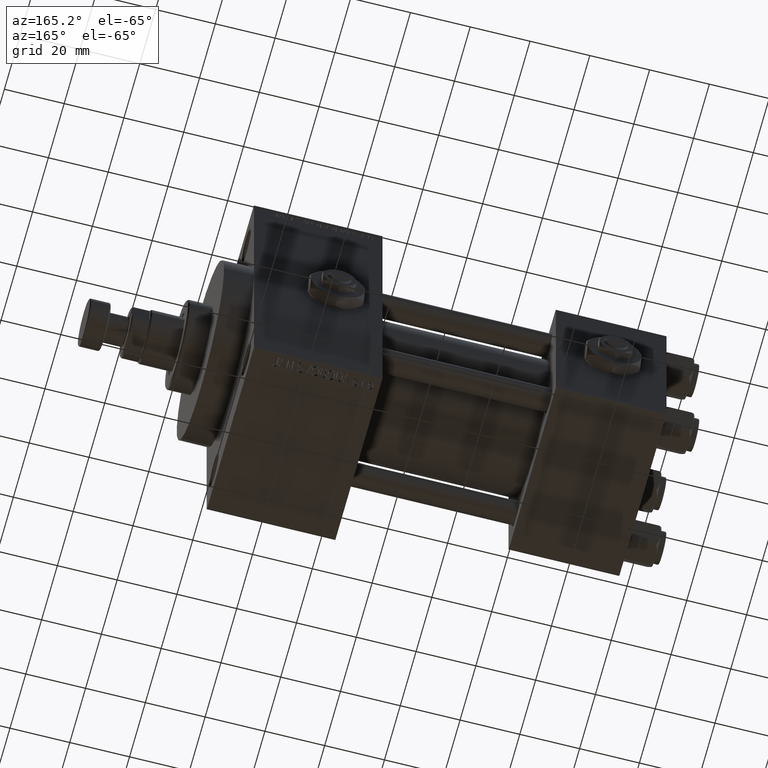
[diagram: clean part render]
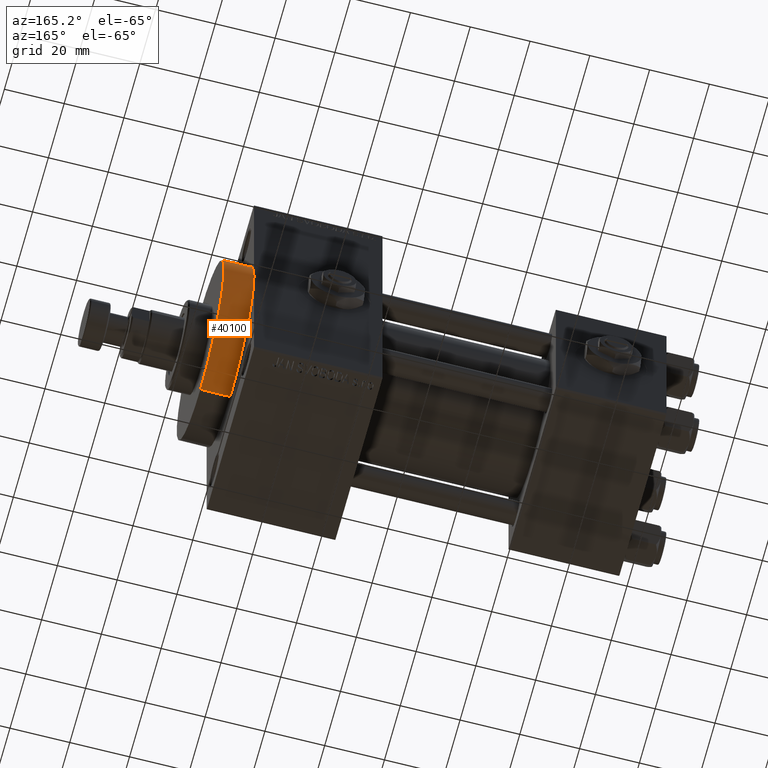
[diagram: same view with one face highlighted and labeled with its STEP entity id]
A machine part, auxiliary view. The second image highlights one B-rep face of the part: STEP entity #40100.
In plain terms, the highlighted cylindrical surface (partial cylindrical patch) has radius 30 mm, axis along (-1, -0, -0).
Its self-contained STEP definition (entity closure, byte-faithful):
#2927 = EDGE_CURVE ( 'NONE', #35675, #49178, #20466, .T. ) ;
#3139 = DIRECTION ( 'NONE',  ( 1.000000000000000000, 0.000000000000000000, 0.000000000000000000 ) ) ;
#3912 = DIRECTION ( 'NONE',  ( 1.000000000000000000, 0.000000000000000000, 0.000000000000000000 ) ) ;
#3929 = DIRECTION ( 'NONE',  ( 0.000000000000000000, 0.000000000000000000, 1.000000000000000000 ) ) ;
#6558 = CIRCLE ( 'NONE', #34665, 30.00000000000000000 ) ;
#6576 = EDGE_CURVE ( 'NONE', #49178, #32250, #46562, .T. ) ;
#6789 = CARTESIAN_POINT ( 'NONE',  ( 138.0000000000000000, 30.00000000000000000, 0.000000000000000000 ) ) ;
#7657 = ORIENTED_EDGE ( 'NONE', *, *, #2927, .T. ) ;
#9033 = AXIS2_PLACEMENT_3D ( 'NONE', #23057, #22568, #3929 ) ;
#9481 = CARTESIAN_POINT ( 'NONE',  ( 148.0000000000000284, 0.000000000000000000, 30.00000000000000000 ) ) ;
#10551 = CIRCLE ( 'NONE', #35443, 30.00000000000000000 ) ;
#10729 = DIRECTION ( 'NONE',  ( 0.000000000000000000, 0.000000000000000000, -1.000000000000000000 ) ) ;
#11508 = EDGE_LOOP ( 'NONE', ( #49161, #7657, #47018, #37475, #22599 ) ) ;
#12058 = VERTEX_POINT ( 'NONE', #40585 ) ;
#12232 = DIRECTION ( 'NONE',  ( 0.000000000000000000, 0.000000000000000000, -1.000000000000000000 ) ) ;
#12930 = DIRECTION ( 'NONE',  ( -1.000000000000000000, -0.000000000000000000, -0.000000000000000000 ) ) ;
#14299 = EDGE_CURVE ( 'NONE', #27494, #12058, #14694, .T. ) ;
#14531 = CARTESIAN_POINT ( 'NONE',  ( 138.0000000000000000, 0.000000000000000000, 0.000000000000000000 ) ) ;
#14694 = LINE ( 'NONE', #49381, #32621 ) ;
#15267 = FACE_OUTER_BOUND ( 'NONE', #11508, .T. ) ;
#17544 = VECTOR ( 'NONE', #12930, 1000.000000000000000 ) ;
#20466 = LINE ( 'NONE', #35819, #17544 ) ;
#22568 = DIRECTION ( 'NONE',  ( -1.000000000000000000, -0.000000000000000000, -0.000000000000000000 ) ) ;
#22599 = ORIENTED_EDGE ( 'NONE', *, *, #14299, .F. ) ;
#23057 = CARTESIAN_POINT ( 'NONE',  ( 148.0000000000000284, 0.000000000000000000, 0.000000000000000000 ) ) ;
#26260 = CARTESIAN_POINT ( 'NONE',  ( 138.0000000000000000, 3.673940397442059178E-15, -30.00000000000000000 ) ) ;
#26273 = CARTESIAN_POINT ( 'NONE',  ( 148.0000000000000284, 0.000000000000000000, 0.000000000000000000 ) ) ;
#26478 = AXIS2_PLACEMENT_3D ( 'NONE', #41155, #29088, #10729 ) ;
#26512 = DIRECTION ( 'NONE',  ( 0.000000000000000000, 0.000000000000000000, -1.000000000000000000 ) ) ;
#27494 = VERTEX_POINT ( 'NONE', #9481 ) ;
#29088 = DIRECTION ( 'NONE',  ( 1.000000000000000000, 0.000000000000000000, 0.000000000000000000 ) ) ;
#29286 = EDGE_CURVE ( 'NONE', #32250, #12058, #10551, .T. ) ;
#29855 = CYLINDRICAL_SURFACE ( 'NONE', #9033, 30.00000000000000000 ) ;
#30007 = DIRECTION ( 'NONE',  ( -1.000000000000000000, -0.000000000000000000, -0.000000000000000000 ) ) ;
#30333 = EDGE_CURVE ( 'NONE', #35675, #27494, #6558, .T. ) ;
#32250 = VERTEX_POINT ( 'NONE', #6789 ) ;
#32621 = VECTOR ( 'NONE', #30007, 1000.000000000000000 ) ;
#34665 = AXIS2_PLACEMENT_3D ( 'NONE', #26273, #3139, #26512 ) ;
#35443 = AXIS2_PLACEMENT_3D ( 'NONE', #14531, #3912, #12232 ) ;
#35675 = VERTEX_POINT ( 'NONE', #40151 ) ;
#35819 = CARTESIAN_POINT ( 'NONE',  ( 148.0000000000000284, 3.673940397442059178E-15, -30.00000000000000000 ) ) ;
#37475 = ORIENTED_EDGE ( 'NONE', *, *, #29286, .T. ) ;
#40100 = ADVANCED_FACE ( 'NONE', ( #15267 ), #29855, .T. ) ;
#40151 = CARTESIAN_POINT ( 'NONE',  ( 148.0000000000000284, 3.673940397442059178E-15, -30.00000000000000000 ) ) ;
#40585 = CARTESIAN_POINT ( 'NONE',  ( 138.0000000000000000, 0.000000000000000000, 30.00000000000000000 ) ) ;
#41155 = CARTESIAN_POINT ( 'NONE',  ( 138.0000000000000000, 0.000000000000000000, 0.000000000000000000 ) ) ;
#46562 = CIRCLE ( 'NONE', #26478, 30.00000000000000000 ) ;
#47018 = ORIENTED_EDGE ( 'NONE', *, *, #6576, .T. ) ;
#49161 = ORIENTED_EDGE ( 'NONE', *, *, #30333, .F. ) ;
#49178 = VERTEX_POINT ( 'NONE', #26260 ) ;
#49381 = CARTESIAN_POINT ( 'NONE',  ( 148.0000000000000284, 0.000000000000000000, 30.00000000000000000 ) ) ;